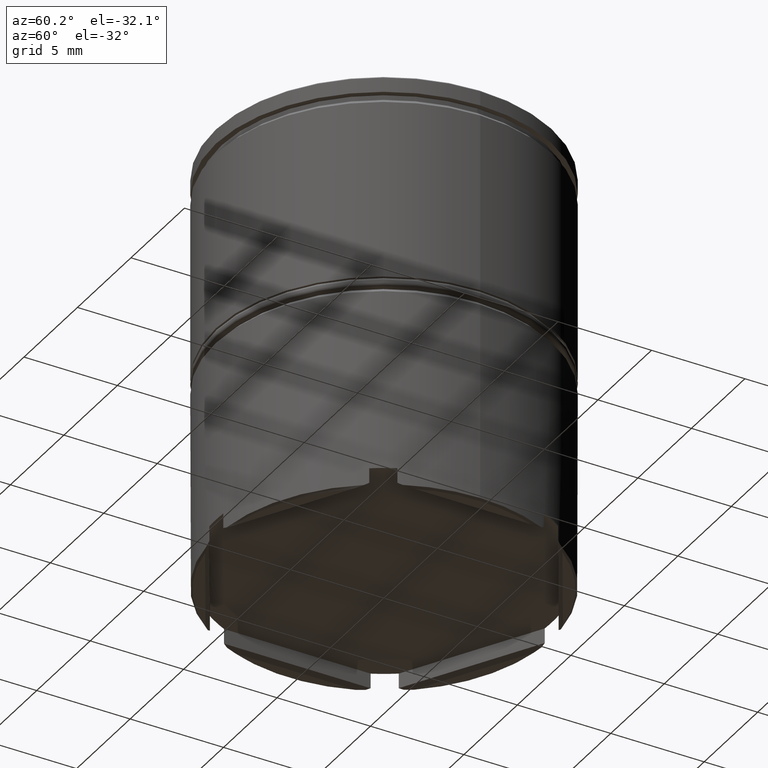
[diagram: clean part render]
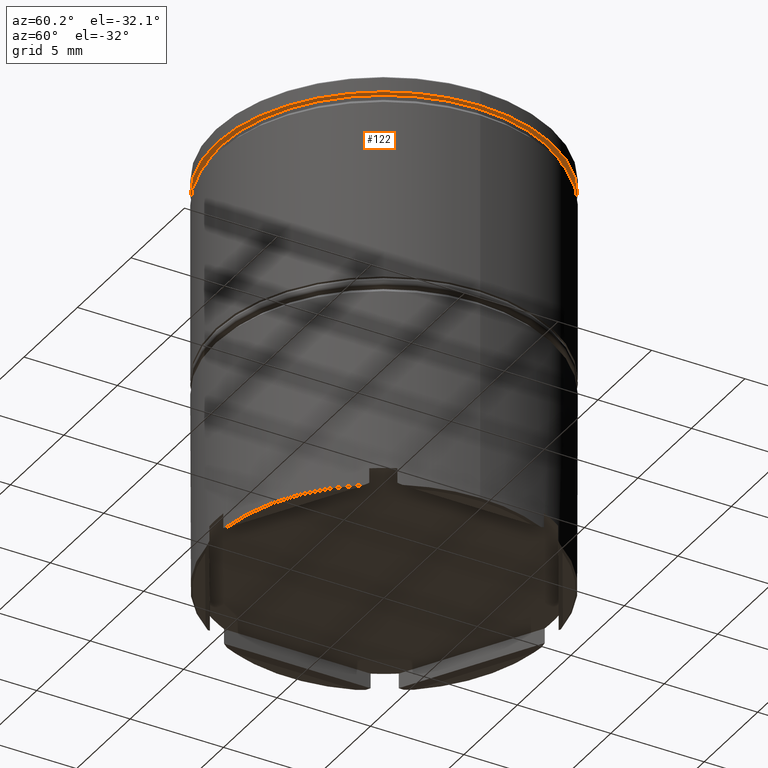
[diagram: same view with one face highlighted and labeled with its STEP entity id]
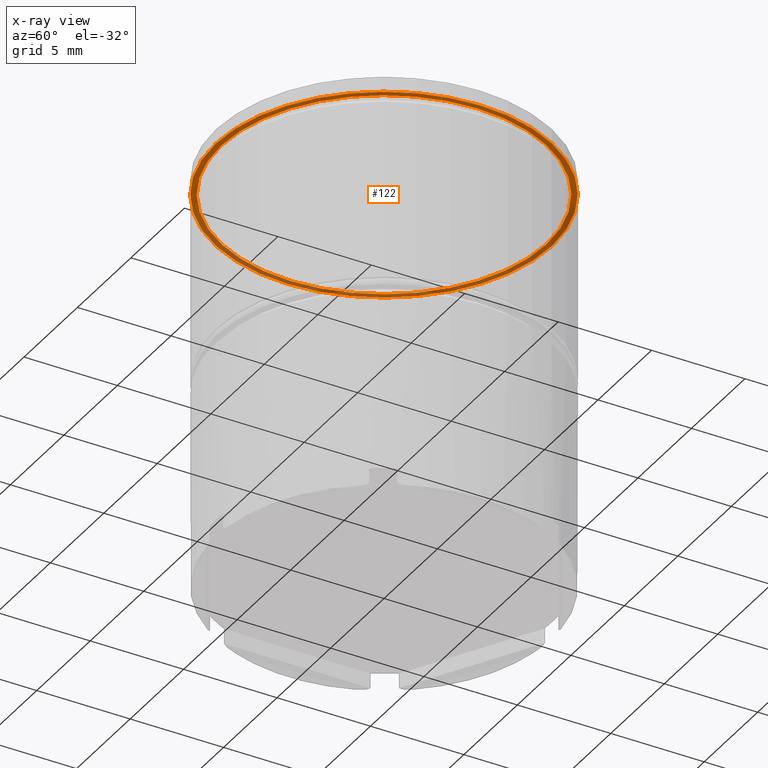
[diagram: x-ray of the same camera — body ghosted, the highlighted face saturated]
A machine part, auxiliary view. The second image highlights one B-rep face of the part: STEP entity #122.
The next image is the same camera in x-ray: the body ghosted, the highlighted face saturated — about 47% of this face is hidden behind the body in this view.
In plain terms, the highlighted planar face has unit normal (0, 0, -1).
Its self-contained STEP definition (entity closure, byte-faithful):
#70 = CARTESIAN_POINT ( 'NONE',  ( 0.000000000000000000, 0.000000000000000000, -0.8749999999999998890 ) ) ;
#122 = ADVANCED_FACE ( 'NONE', ( #175, #559 ), #323, .T. ) ;
#175 = FACE_BOUND ( 'NONE', #635, .T. ) ;
#179 = EDGE_CURVE ( 'NONE', #669, #1142, #1164, .T. ) ;
#185 = DIRECTION ( 'NONE',  ( -0.000000000000000000, -0.000000000000000000, 1.000000000000000000 ) ) ;
#237 = CIRCLE ( 'NONE', #531, 9.000000000000000000 ) ;
#292 = AXIS2_PLACEMENT_3D ( 'NONE', #408, #1391, #552 ) ;
#323 = PLANE ( 'NONE',  #970 ) ;
#408 = CARTESIAN_POINT ( 'NONE',  ( 0.000000000000000000, 0.000000000000000000, -0.8749999999999998890 ) ) ;
#437 = CARTESIAN_POINT ( 'NONE',  ( 0.000000000000000000, 0.000000000000000000, -0.8749999999999998890 ) ) ;
#445 = CARTESIAN_POINT ( 'NONE',  ( 8.699999999999999289, 0.000000000000000000, -0.8749999999999998890 ) ) ;
#450 = DIRECTION ( 'NONE',  ( 1.000000000000000000, 0.000000000000000000, 0.000000000000000000 ) ) ;
#484 = ORIENTED_EDGE ( 'NONE', *, *, #179, .T. ) ;
#531 = AXIS2_PLACEMENT_3D ( 'NONE', #437, #689, #550 ) ;
#550 = DIRECTION ( 'NONE',  ( 1.000000000000000000, 0.000000000000000000, 0.000000000000000000 ) ) ;
#552 = DIRECTION ( 'NONE',  ( 1.000000000000000000, 0.000000000000000000, 0.000000000000000000 ) ) ;
#559 = FACE_OUTER_BOUND ( 'NONE', #1577, .T. ) ;
#587 = CARTESIAN_POINT ( 'NONE',  ( -9.000000000000000000, 1.102182119232617714E-15, -0.8749999999999998890 ) ) ;
#635 = EDGE_LOOP ( 'NONE', ( #825, #484 ) ) ;
#669 = VERTEX_POINT ( 'NONE', #1352 ) ;
#689 = DIRECTION ( 'NONE',  ( -0.000000000000000000, -0.000000000000000000, 1.000000000000000000 ) ) ;
#695 = ORIENTED_EDGE ( 'NONE', *, *, #1426, .F. ) ;
#696 = CIRCLE ( 'NONE', #978, 8.699999999999999289 ) ;
#808 = ORIENTED_EDGE ( 'NONE', *, *, #962, .F. ) ;
#813 = CARTESIAN_POINT ( 'NONE',  ( 0.000000000000000000, 0.000000000000000000, -0.8749999999999998890 ) ) ;
#825 = ORIENTED_EDGE ( 'NONE', *, *, #1468, .T. ) ;
#962 = EDGE_CURVE ( 'NONE', #1393, #1595, #1562, .T. ) ;
#970 = AXIS2_PLACEMENT_3D ( 'NONE', #1312, #1079, #1572 ) ;
#978 = AXIS2_PLACEMENT_3D ( 'NONE', #813, #185, #1313 ) ;
#1042 = CARTESIAN_POINT ( 'NONE',  ( 9.000000000000000000, 0.000000000000000000, -0.8749999999999998890 ) ) ;
#1079 = DIRECTION ( 'NONE',  ( 0.000000000000000000, 0.000000000000000000, -1.000000000000000000 ) ) ;
#1142 = VERTEX_POINT ( 'NONE', #445 ) ;
#1164 = CIRCLE ( 'NONE', #1259, 8.699999999999999289 ) ;
#1259 = AXIS2_PLACEMENT_3D ( 'NONE', #70, #1578, #450 ) ;
#1312 = CARTESIAN_POINT ( 'NONE',  ( 0.000000000000000000, 9.000000000000000000, -0.8749999999999998890 ) ) ;
#1313 = DIRECTION ( 'NONE',  ( 1.000000000000000000, 0.000000000000000000, 0.000000000000000000 ) ) ;
#1352 = CARTESIAN_POINT ( 'NONE',  ( -8.699999999999999289, 1.065442715258197248E-15, -0.8749999999999998890 ) ) ;
#1391 = DIRECTION ( 'NONE',  ( -0.000000000000000000, -0.000000000000000000, 1.000000000000000000 ) ) ;
#1393 = VERTEX_POINT ( 'NONE', #1042 ) ;
#1426 = EDGE_CURVE ( 'NONE', #1595, #1393, #237, .T. ) ;
#1468 = EDGE_CURVE ( 'NONE', #1142, #669, #696, .T. ) ;
#1562 = CIRCLE ( 'NONE', #292, 9.000000000000000000 ) ;
#1572 = DIRECTION ( 'NONE',  ( -1.000000000000000000, 0.000000000000000000, -0.000000000000000000 ) ) ;
#1577 = EDGE_LOOP ( 'NONE', ( #808, #695 ) ) ;
#1578 = DIRECTION ( 'NONE',  ( -0.000000000000000000, -0.000000000000000000, 1.000000000000000000 ) ) ;
#1595 = VERTEX_POINT ( 'NONE', #587 ) ;